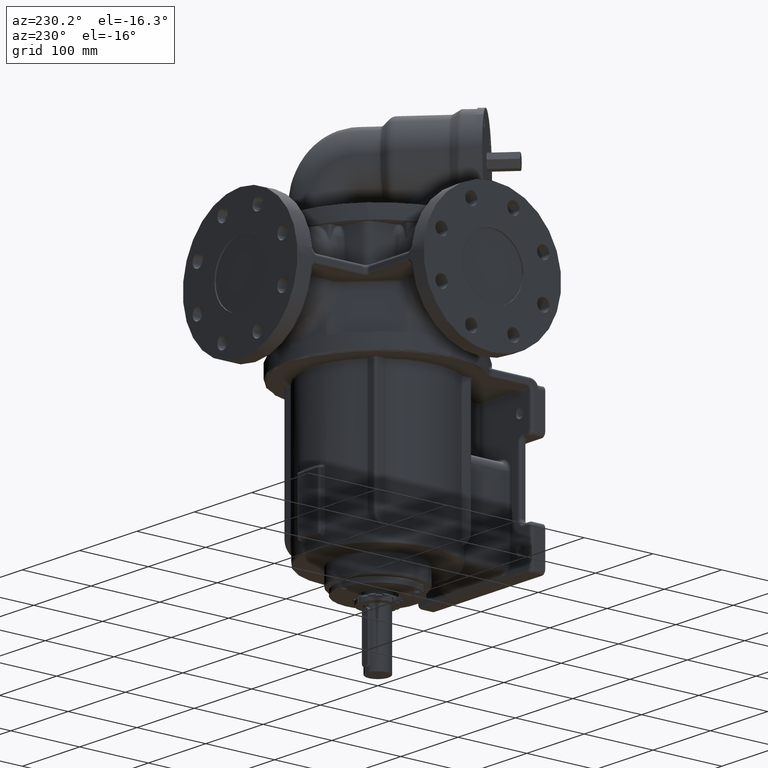
[diagram: clean part render]
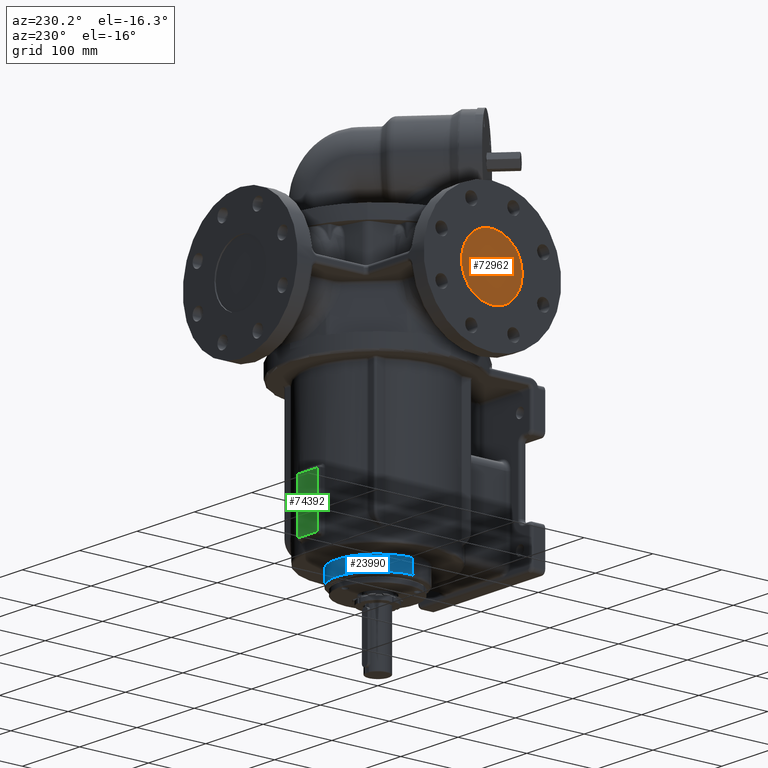
[diagram: same view with three faces highlighted in distinct colors, each labeled with its STEP entity id]
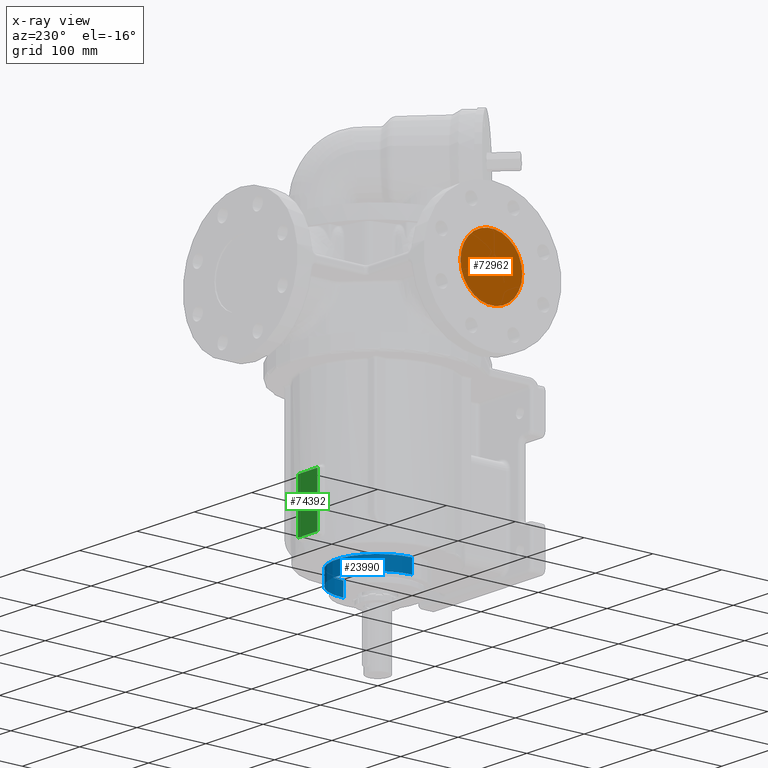
[diagram: x-ray of the same camera — body ghosted, the three highlighted faces saturated]
A machine part, auxiliary view with three faces highlighted in distinct colors.
The next image is the same camera in x-ray (body ghosted, the three faces saturated) — at least one of them is partly hidden behind the body in this view.
Their STEP definitions:

[orange] entity #72962 — the highlighted planar face has unit normal (-1, 0, 0).
#18421=CARTESIAN_POINT('',(-1.98E2,-8.662003560364E-14,7.6E1));
#18422=DIRECTION('',(-1.E0,0.E0,0.E0));
#18423=DIRECTION('',(0.E0,1.E0,0.E0));
#18424=AXIS2_PLACEMENT_3D('',#18421,#18422,#18423);
#18426=CARTESIAN_POINT('',(-1.98E2,-8.662003560364E-14,7.6E1));
#18427=DIRECTION('',(-1.E0,0.E0,0.E0));
#18428=DIRECTION('',(0.E0,-1.E0,0.E0));
#18429=AXIS2_PLACEMENT_3D('',#18426,#18427,#18428);
#23190=CARTESIAN_POINT('',(-1.98E2,4.5E1,7.6E1));
#23191=CARTESIAN_POINT('',(-1.98E2,-4.5E1,7.6E1));
#23192=VERTEX_POINT('',#23190);
#23193=VERTEX_POINT('',#23191);
#72953=CARTESIAN_POINT('',(-1.98E2,-8.662003560364E-14,7.6E1));
#72954=DIRECTION('',(-1.E0,0.E0,0.E0));
#72955=DIRECTION('',(0.E0,1.E0,0.E0));
#72956=AXIS2_PLACEMENT_3D('',#72953,#72954,#72955);
#72957=PLANE('',#72956);
#72958=ORIENTED_EDGE('',*,*,#72933,.F.);
#72959=ORIENTED_EDGE('',*,*,#72947,.F.);
#72960=EDGE_LOOP('',(#72958,#72959));
#72961=FACE_OUTER_BOUND('',#72960,.F.);
#72962=ADVANCED_FACE('',(#72961),#72957,.T.);
#18425=CIRCLE('',#18424,4.5E1);
#18430=CIRCLE('',#18429,4.5E1);
#72933=EDGE_CURVE('',#23192,#23193,#18425,.T.);
#72947=EDGE_CURVE('',#23193,#23192,#18430,.T.);

[blue] entity #23990 — the highlighted cylindrical surface (partial cylindrical patch) has radius 60 mm, axis along (0, 0, 1).
#255=CARTESIAN_POINT('',(0.E0,-3.086108933851E-14,-2.51E2));
#256=DIRECTION('',(0.E0,0.E0,-1.E0));
#257=DIRECTION('',(-1.E0,0.E0,0.E0));
#258=AXIS2_PLACEMENT_3D('',#255,#256,#257);
#260=DIRECTION('',(0.E0,1.321627628496E-12,-1.E0));
#261=VECTOR('',#260,2.E1);
#262=CARTESIAN_POINT('',(6.E1,-2.136613362187E-11,-2.31E2));
#263=LINE('',#262,#261);
#264=CARTESIAN_POINT('',(0.E0,-2.841179574022E-14,-2.31E2));
#265=DIRECTION('',(0.E0,0.E0,1.E0));
#266=DIRECTION('',(1.E0,0.E0,0.E0));
#267=AXIS2_PLACEMENT_3D('',#264,#265,#266);
#269=DIRECTION('',(0.E0,-1.321341987356E-12,-1.E0));
#270=VECTOR('',#269,2.E1);
#271=CARTESIAN_POINT('',(-6.E1,2.131075842253E-11,-2.31E2));
#272=LINE('',#271,#270);
#21514=CARTESIAN_POINT('',(-6.E1,-3.575967653510E-14,-2.31E2));
#21515=CARTESIAN_POINT('',(6.E1,-2.841179574022E-14,-2.31E2));
#21516=VERTEX_POINT('',#21514);
#21517=VERTEX_POINT('',#21515);
#21526=CARTESIAN_POINT('',(6.E1,-2.303399892657E-14,-2.51E2));
#21527=CARTESIAN_POINT('',(-6.E1,-4.603606054534E-14,-2.51E2));
#21528=VERTEX_POINT('',#21526);
#21529=VERTEX_POINT('',#21527);
#23976=CARTESIAN_POINT('',(0.E0,-3.280827774916E-14,-2.669E2));
#23977=DIRECTION('',(0.E0,0.E0,1.E0));
#23978=DIRECTION('',(1.E0,0.E0,0.E0));
#23979=AXIS2_PLACEMENT_3D('',#23976,#23977,#23978);
#23980=CYLINDRICAL_SURFACE('',#23979,6.E1);
#23981=ORIENTED_EDGE('',*,*,#23970,.T.);
#23983=ORIENTED_EDGE('',*,*,#23982,.F.);
#23985=ORIENTED_EDGE('',*,*,#23984,.T.);
#23987=ORIENTED_EDGE('',*,*,#23986,.T.);
#23988=EDGE_LOOP('',(#23981,#23983,#23985,#23987));
#23989=FACE_OUTER_BOUND('',#23988,.F.);
#23990=ADVANCED_FACE('',(#23989),#23980,.T.);
#259=CIRCLE('',#258,6.E1);
#268=CIRCLE('',#267,6.E1);
#23970=EDGE_CURVE('',#21529,#21528,#259,.T.);
#23982=EDGE_CURVE('',#21517,#21528,#263,.T.);
#23984=EDGE_CURVE('',#21517,#21516,#268,.T.);
#23986=EDGE_CURVE('',#21516,#21529,#272,.T.);

[green] entity #74392 — the highlighted planar face has unit normal (0, -1, 0).
#19474=DIRECTION('',(1.E0,0.E0,0.E0));
#19475=VECTOR('',#19474,3.4E1);
#19476=CARTESIAN_POINT('',(-1.7E1,1.02E2,-1.36E2));
#19477=LINE('',#19476,#19475);
#19478=DIRECTION('',(0.E0,0.E0,1.E0));
#19479=VECTOR('',#19478,7.4E1);
#19480=CARTESIAN_POINT('',(-1.7E1,1.02E2,-2.1E2));
#19481=LINE('',#19480,#19479);
#19482=DIRECTION('',(-1.E0,0.E0,0.E0));
#19483=VECTOR('',#19482,3.4E1);
#19484=CARTESIAN_POINT('',(1.7E1,1.02E2,-2.1E2));
#19485=LINE('',#19484,#19483);
#19486=DIRECTION('',(0.E0,0.E0,-1.E0));
#19487=VECTOR('',#19486,7.4E1);
#19488=CARTESIAN_POINT('',(1.7E1,1.02E2,-1.36E2));
#19489=LINE('',#19488,#19487);
#21985=CARTESIAN_POINT('',(-1.7E1,1.02E2,-1.36E2));
#21986=CARTESIAN_POINT('',(1.7E1,1.02E2,-1.36E2));
#21987=VERTEX_POINT('',#21985);
#21988=VERTEX_POINT('',#21986);
#21993=CARTESIAN_POINT('',(1.7E1,1.02E2,-2.1E2));
#21994=VERTEX_POINT('',#21993);
#21999=CARTESIAN_POINT('',(-1.7E1,1.02E2,-2.1E2));
#22000=VERTEX_POINT('',#21999);
#74380=CARTESIAN_POINT('',(0.E0,1.02E2,1.E0));
#74381=DIRECTION('',(0.E0,-1.E0,0.E0));
#74382=DIRECTION('',(1.E0,0.E0,0.E0));
#74383=AXIS2_PLACEMENT_3D('',#74380,#74381,#74382);
#74384=PLANE('',#74383);
#74385=ORIENTED_EDGE('',*,*,#74346,.F.);
#74386=ORIENTED_EDGE('',*,*,#74371,.F.);
#74387=ORIENTED_EDGE('',*,*,#74263,.F.);
#74389=ORIENTED_EDGE('',*,*,#74388,.F.);
#74390=EDGE_LOOP('',(#74385,#74386,#74387,#74389));
#74391=FACE_OUTER_BOUND('',#74390,.F.);
#74392=ADVANCED_FACE('',(#74391),#74384,.F.);
#74263=EDGE_CURVE('',#21994,#22000,#19485,.T.);
#74346=EDGE_CURVE('',#21987,#21988,#19477,.T.);
#74371=EDGE_CURVE('',#22000,#21987,#19481,.T.);
#74388=EDGE_CURVE('',#21988,#21994,#19489,.T.);